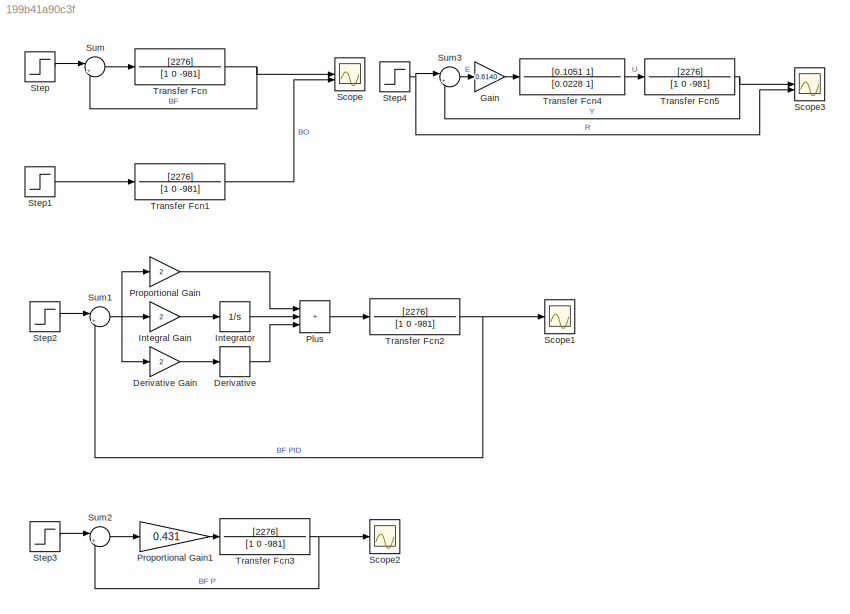
MODEL slx_199b41a90c3f
KIND model
CONFIG AbsTol = auto
CONFIG EnableMultiTasking = off
CONFIG FixedStep = auto
CONFIG MaxStep = auto
CONFIG MinStep = auto
CONFIG RelTol = 1e-3
CONFIG SampleTimeConstraint = Unconstrained
CONFIG SolverName = VariableStepAuto
CONFIG StartTime = 0.0
CONFIG StopTime = 10
BLOCK [Derivative] Derivative
BLOCK [Gain] Derivative Gain
  Gain = 2
BLOCK [Gain] Gain
  Gain = 0.6140
BLOCK [Gain] Integral Gain
  Gain = 2
BLOCK [Integrator] Integrator
BLOCK [Sum] Plus
  IconShape = rectangular
  Inputs = +++
BLOCK [Gain] Proportional Gain
  Gain = 2
BLOCK [Gain] Proportional Gain1
  Gain = 0.431
BLOCK [Scope] Scope
  Floating = off
  NumInputPorts = 2
  ScopeSpecificationString = Simulink.scopes.TimeScopeBlockCfg('CurrentConfiguration', extmgr.ConfigurationSet(extmgr.Configuration('Core','General UI',true),extmgr.Configuration('Core','Source UI',true),extmgr.Configuration('Sources','WiredSimulink',true),extmgr.Configuration('Visuals','Time Domain',true,'SerializedDisplays',{struct('MinYLimReal','-38362415036735859032893634094819495180953660603872216533174696199474037467879...<+2820ch>
BLOCK [Scope] Scope1
  Floating = off
  NumInputPorts = 1
  ScopeSpecificationString = Simulink.scopes.TimeScopeBlockCfg('CurrentConfiguration', extmgr.ConfigurationSet(extmgr.Configuration('Core','General UI',true),extmgr.Configuration('Core','Source UI',true),extmgr.Configuration('Sources','WiredSimulink',true,'DataLoggingVariableName','ScopeData1'),extmgr.Configuration('Visuals','Time Domain',true,'SerializedDisplays',{struct('MinYLimReal','-0.1782','MaxYLimReal','1.60381','YLabe...<+1807ch>
BLOCK [Scope] Scope2
  Floating = off
  NumInputPorts = 1
  ScopeSpecificationString = Simulink.scopes.TimeScopeBlockCfg('CurrentConfiguration', extmgr.ConfigurationSet(extmgr.Configuration('Core','General UI',true),extmgr.Configuration('Core','Source UI',true),extmgr.Configuration('Sources','WiredSimulink',true,'DataLoggingVariableName','ScopeData2'),extmgr.Configuration('Visuals','Time Domain',true,'SerializedDisplays',{struct('MinYLimReal','-6627.84529','MaxYLimReal','59650.60763...<+1833ch>
BLOCK [Scope] Scope3
  Floating = off
  NumInputPorts = 2
  ScopeSpecificationString = Simulink.scopes.TimeScopeBlockCfg('CurrentConfiguration', extmgr.ConfigurationSet(extmgr.Configuration('Core','General UI',true),extmgr.Configuration('Core','Source UI',true),extmgr.Configuration('Sources','WiredSimulink',true,'DataLoggingVariableName','ScopeData3'),extmgr.Configuration('Visuals','Time Domain',true,'SerializedDisplays',{struct('MinYLimReal','-0.41944','MaxYLimReal','3.77499','YLab...<+1939ch>
BLOCK [Step] Step
  SampleTime = 0
BLOCK [Step] Step1
  SampleTime = 0
BLOCK [Step] Step2
  SampleTime = 0
BLOCK [Step] Step3
  SampleTime = 0
BLOCK [Step] Step4
  SampleTime = 0
BLOCK [Sum] Sum
  Inputs = |+-
BLOCK [Sum] Sum1
  Inputs = |+-
BLOCK [Sum] Sum2
  Inputs = |+-
BLOCK [Sum] Sum3
  Inputs = |+-
BLOCK [TransferFcn] Transfer Fcn
  Denominator = [1 0 -981]
  Numerator = [2276]
BLOCK [TransferFcn] Transfer Fcn1
  Denominator = [1 0 -981]
  Numerator = [2276]
BLOCK [TransferFcn] Transfer Fcn2
  Denominator = [1 0 -981]
  Numerator = [2276]
BLOCK [TransferFcn] Transfer Fcn3
  Denominator = [1 0 -981]
  Numerator = [2276]
BLOCK [TransferFcn] Transfer Fcn4
  Denominator = [0.0228 1]
  Numerator = [0.1051 1]
BLOCK [TransferFcn] Transfer Fcn5
  Denominator = [1 0 -981]
  Numerator = [2276]
LINE Derivative Gain:1 -> Derivative:1
LINE Derivative:1 -> Plus:3
LINE Gain:1 -> Transfer Fcn4:1
LINE Integral Gain:1 -> Integrator:1
LINE Integrator:1 -> Plus:2
LINE Plus:1 -> Transfer Fcn2:1
LINE Proportional Gain1:1 -> Transfer Fcn3:1
LINE Proportional Gain:1 -> Plus:1
LINE Step1:1 -> Transfer Fcn1:1
LINE Step2:1 -> Sum1:1
LINE Step3:1 -> Sum2:1
NET Step4:1 -> Scope3:2, Sum3:1
LINE Step:1 -> Sum:1
NET Sum1:1 -> Derivative Gain:1, Integral Gain:1, Proportional Gain:1
LINE Sum2:1 -> Proportional Gain1:1
LINE Sum3:1 -> Gain:1
LINE Sum:1 -> Transfer Fcn:1
LINE Transfer Fcn1:1 -> Scope:2
NET Transfer Fcn2:1 -> Scope1:1, Sum1:2
NET Transfer Fcn3:1 -> Scope2:1, Sum2:2
LINE Transfer Fcn4:1 -> Transfer Fcn5:1
NET Transfer Fcn5:1 -> Scope3:1, Sum3:2
NET Transfer Fcn:1 -> Scope:1, Sum:2
note: NET lines group one-source signal fan-out (src -> all destinations, sorted); 1:1 wires keep LINE
